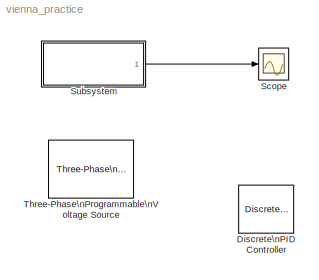
MODEL vienna_practice
KIND model
BLOCK [Reference] Discrete\nPID Controller  REF=powerlib_extras/Discrete \nControl Blocks/Discrete\nPID Controller
  DialogController = POWERSYS.PowerSysDialog
  FunctionWithSeparateData = off
  GeneratePreprocessorConditionals = off
  Init = 0
  Kd = 1
  Ki = 1
  Kp = 1
  Par_Limits = [100 -100]
  Ports = [1, 1]
  RTWMemSecDataConstants = Inherit from model
  RTWMemSecDataInternal = Inherit from model
  RTWMemSecDataParameters = Inherit from model
  RTWMemSecFuncExecute = Inherit from model
  RTWMemSecFuncInitTerm = Inherit from model
  SID = 13
  ShowPortLabels = FromPortIcon
  SourceBlock = powerlib_extras/Discrete \nControl Blocks/Discrete\nPID Controller
  SourceType = Discrete PID Controller
  SystemSampleTime = -1
  TcD = 1
  Ts = 0.5
BLOCK [Scope] Scope
  DataFormat = Array
  Floating = off
  LimitDataPoints = off
  NumInputPorts = 1
  Ports = [1]
  SID = 9
  SampleTime = 0
  SaveName = sine
  SaveToWorkspace = on
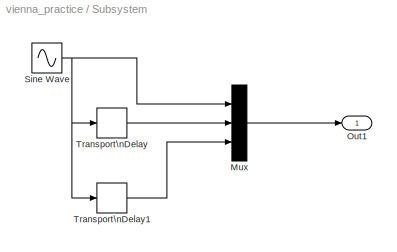
BLOCK [SubSystem] Subsystem
  FunctionWithSeparateData = off
  MaskHideContents = off
  MinAlgLoopOccurrences = off
  Opaque = off
  Ports = [0, 1]
  PropExecContextOutsideSubsystem = off
  RTWSystemCode = Auto
  RequestExecContextInheritance = off
  SID = 1
BLOCK [Mux] Subsystem/Mux
  DisplayOption = bar
  Inputs = 3
  Ports = [3, 1]
  SID = 7
BLOCK [Outport] Subsystem/Out1
  IconDisplay = Port number
  SID = 8
BLOCK [Sin] Subsystem/Sine Wave
  Amplitude = 220
  Frequency = 314
  Ports = [0, 1]
  SID = 4
  SampleTime = 0
BLOCK [TransportDelay] Subsystem/Transport\nDelay
  DelayTime = 0.02/3
  Ports = [1, 1]
  SID = 5
BLOCK [TransportDelay] Subsystem/Transport\nDelay1
  DelayTime = 0.04/3
  Ports = [1, 1]
  SID = 6
BLOCK [Reference] Three-Phase\nProgrammable\nVoltage Source  REF=powerlib/Electrical\nSources/Three-Phase\nProgrammable\nVoltage Source
  Amplitudes = [1 0.8 1.2 1.0]
  DialogController = POWERSYS.PowerSysDialog
  FunctionWithSeparateData = off
  GeneratePreprocessorConditionals = off
  HarmonicA = [3 0.2 -25 0]
  HarmonicB = [2 0.15 35 2]
  HarmonicGeneration = off
  Ports = [0, 0, 0, 0, 0, 1, 3]
  PositiveSequence = [100  0 60]
  RTWMemSecDataConstants = Inherit from model
  RTWMemSecDataInternal = Inherit from model
  RTWMemSecDataParameters = Inherit from model
  RTWMemSecFuncExecute = Inherit from model
  RTWMemSecFuncInitTerm = Inherit from model
  SID = 10
  ShowPortLabels = FromPortIcon
  SourceBlock = powerlib/Electrical\nSources/Three-Phase\nProgrammable\nVoltage Source
  SourceType = Three-Phase Programmable Voltage Source
  SystemSampleTime = -1
  TimeValues = [0 0.1 0.15 0.2]
  Timing = [0.05  3]
  VariationEntity = None
  VariationFrequency = 2
  VariationMagnitude = 0.3
  VariationPhaseA = off
  VariationRate = 10
  VariationStep = 0.5
  VariationTiming = [1 2]
  VariationType = Step
LINE Subsystem/Mux:1 -> Subsystem/Out1:1
NET Subsystem/Sine Wave:1 -> Subsystem/Mux:1, Subsystem/Transport\nDelay1:1, Subsystem/Transport\nDelay:1
LINE Subsystem/Transport\nDelay1:1 -> Subsystem/Mux:3
LINE Subsystem/Transport\nDelay:1 -> Subsystem/Mux:2
LINE Subsystem:1 -> Scope:1
note: NET lines group one-source signal fan-out (src -> all destinations, sorted); 1:1 wires keep LINE
